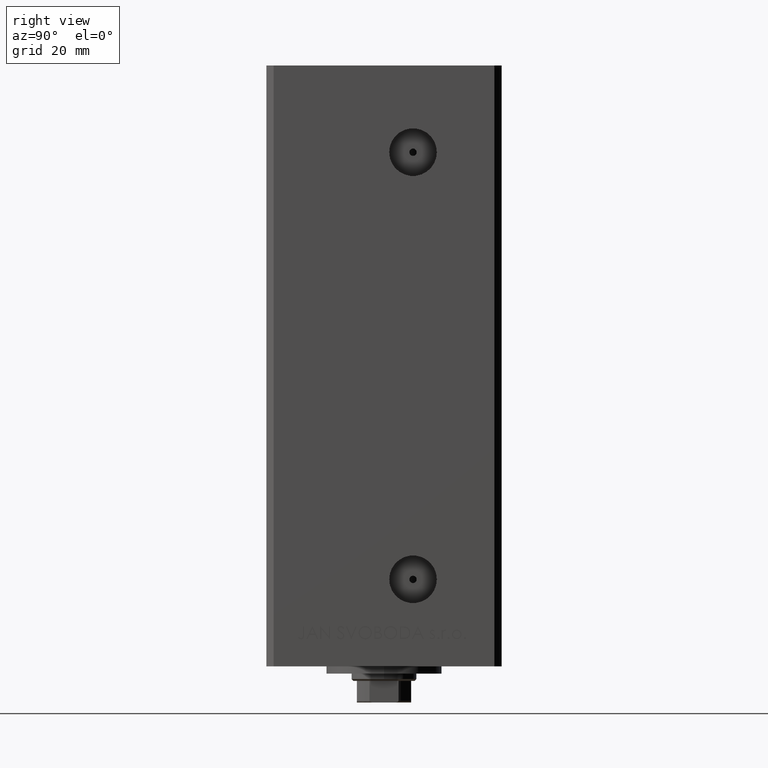
[diagram: clean part render]
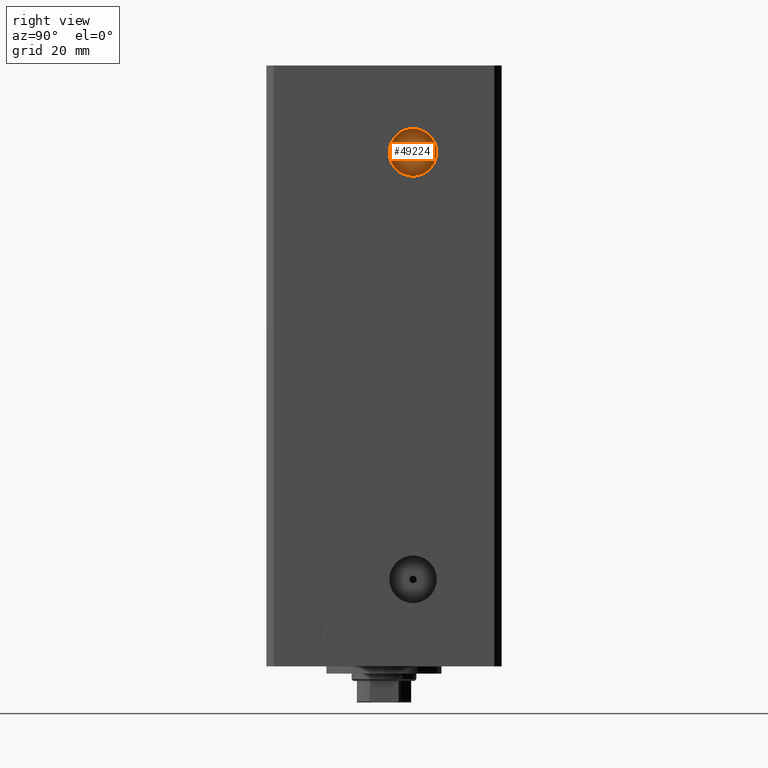
[diagram: same view with one face highlighted and labeled with its STEP entity id]
A machine part, right view. The second image highlights one B-rep face of the part: STEP entity #49224.
In plain terms, the highlighted planar face has unit normal (1, -0, 0).
Its self-contained STEP definition (entity closure, byte-faithful):
#1494 = FACE_BOUND ( 'NONE', #7496, .T. ) ;
#1686 = VERTEX_POINT ( 'NONE', #27633 ) ;
#2287 = EDGE_CURVE ( 'NONE', #2810, #1686, #27016, .T. ) ;
#2810 = VERTEX_POINT ( 'NONE', #27342 ) ;
#2999 = VERTEX_POINT ( 'NONE', #18818 ) ;
#5483 = CARTESIAN_POINT ( 'NONE',  ( 24.50000000000000000, 7.999999999999994671, 127.0000000000000000 ) ) ;
#6133 = CARTESIAN_POINT ( 'NONE',  ( 24.50000000000000000, 7.999999999999994671, 127.0000000000000000 ) ) ;
#7496 = EDGE_LOOP ( 'NONE', ( #24225, #40362 ) ) ;
#8396 = CIRCLE ( 'NONE', #14683, 0.9999999999999974465 ) ;
#10076 = DIRECTION ( 'NONE',  ( 1.000000000000000000, -2.275047181608927644E-16, 0.000000000000000000 ) ) ;
#10319 = AXIS2_PLACEMENT_3D ( 'NONE', #33476, #10076, #44946 ) ;
#12953 = DIRECTION ( 'NONE',  ( 1.000000000000000000, -2.275047181608927644E-16, 0.000000000000000000 ) ) ;
#12967 = CARTESIAN_POINT ( 'NONE',  ( 24.50000000000000000, 6.999999999999997335, 127.0000000000000000 ) ) ;
#14438 = CIRCLE ( 'NONE', #27940, 0.9999999999999974465 ) ;
#14683 = AXIS2_PLACEMENT_3D ( 'NONE', #41058, #18366, #15121 ) ;
#15121 = DIRECTION ( 'NONE',  ( 0.000000000000000000, 1.000000000000000000, 0.000000000000000000 ) ) ;
#16677 = PLANE ( 'NONE',  #45589 ) ;
#17128 = EDGE_CURVE ( 'NONE', #1686, #2810, #31822, .T. ) ;
#17817 = DIRECTION ( 'NONE',  ( 0.000000000000000000, 1.000000000000000000, 0.000000000000000000 ) ) ;
#18300 = AXIS2_PLACEMENT_3D ( 'NONE', #44732, #47740, #17817 ) ;
#18366 = DIRECTION ( 'NONE',  ( 1.000000000000000000, -2.275047181608927644E-16, 0.000000000000000000 ) ) ;
#18818 = CARTESIAN_POINT ( 'NONE',  ( 24.50000000000000000, 8.999999999999992895, 127.0000000000000000 ) ) ;
#22870 = EDGE_LOOP ( 'NONE', ( #37534, #43973 ) ) ;
#24225 = ORIENTED_EDGE ( 'NONE', *, *, #41369, .F. ) ;
#25784 = DIRECTION ( 'NONE',  ( 0.000000000000000000, 1.000000000000000000, 0.000000000000000000 ) ) ;
#27016 = CIRCLE ( 'NONE', #10319, 6.580000000000002736 ) ;
#27342 = CARTESIAN_POINT ( 'NONE',  ( 24.50000000000000000, 14.57999999999999829, 127.0000000000000000 ) ) ;
#27633 = CARTESIAN_POINT ( 'NONE',  ( 24.50000000000000000, 1.419999999999992379, 127.0000000000000000 ) ) ;
#27940 = AXIS2_PLACEMENT_3D ( 'NONE', #6133, #43991, #25784 ) ;
#31130 = EDGE_CURVE ( 'NONE', #36939, #2999, #8396, .T. ) ;
#31149 = FACE_OUTER_BOUND ( 'NONE', #22870, .T. ) ;
#31822 = CIRCLE ( 'NONE', #18300, 6.580000000000002736 ) ;
#33476 = CARTESIAN_POINT ( 'NONE',  ( 24.50000000000000000, 7.999999999999994671, 127.0000000000000000 ) ) ;
#35385 = DIRECTION ( 'NONE',  ( 2.275047181608927644E-16, 1.000000000000000000, 0.000000000000000000 ) ) ;
#36939 = VERTEX_POINT ( 'NONE', #12967 ) ;
#37534 = ORIENTED_EDGE ( 'NONE', *, *, #2287, .T. ) ;
#40362 = ORIENTED_EDGE ( 'NONE', *, *, #31130, .F. ) ;
#41058 = CARTESIAN_POINT ( 'NONE',  ( 24.50000000000000000, 7.999999999999994671, 127.0000000000000000 ) ) ;
#41369 = EDGE_CURVE ( 'NONE', #2999, #36939, #14438, .T. ) ;
#43973 = ORIENTED_EDGE ( 'NONE', *, *, #17128, .T. ) ;
#43991 = DIRECTION ( 'NONE',  ( 1.000000000000000000, -2.275047181608927644E-16, 0.000000000000000000 ) ) ;
#44732 = CARTESIAN_POINT ( 'NONE',  ( 24.50000000000000000, 7.999999999999994671, 127.0000000000000000 ) ) ;
#44946 = DIRECTION ( 'NONE',  ( 0.000000000000000000, 1.000000000000000000, 0.000000000000000000 ) ) ;
#45589 = AXIS2_PLACEMENT_3D ( 'NONE', #5483, #12953, #35385 ) ;
#47740 = DIRECTION ( 'NONE',  ( 1.000000000000000000, -2.275047181608927644E-16, 0.000000000000000000 ) ) ;
#49224 = ADVANCED_FACE ( 'NONE', ( #1494, #31149 ), #16677, .T. ) ;